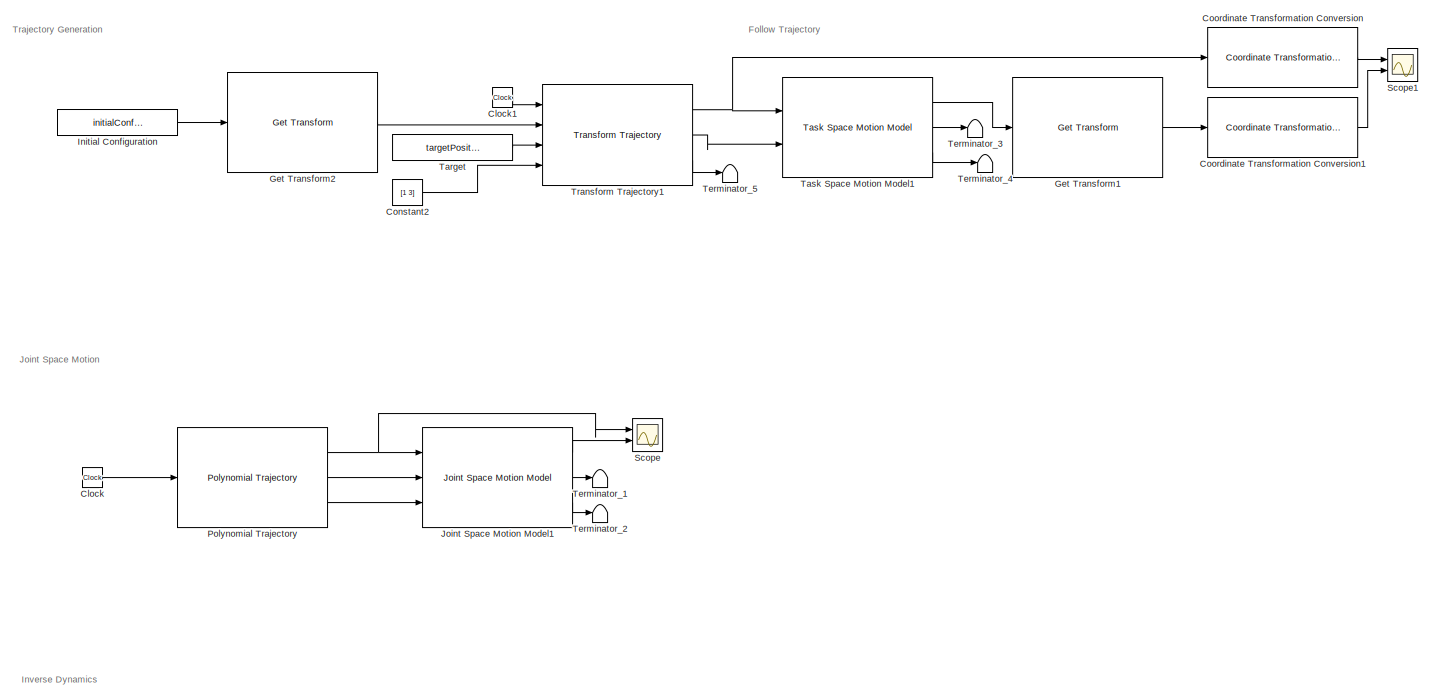
[diagram: root canvas - part 1/3, top left region]
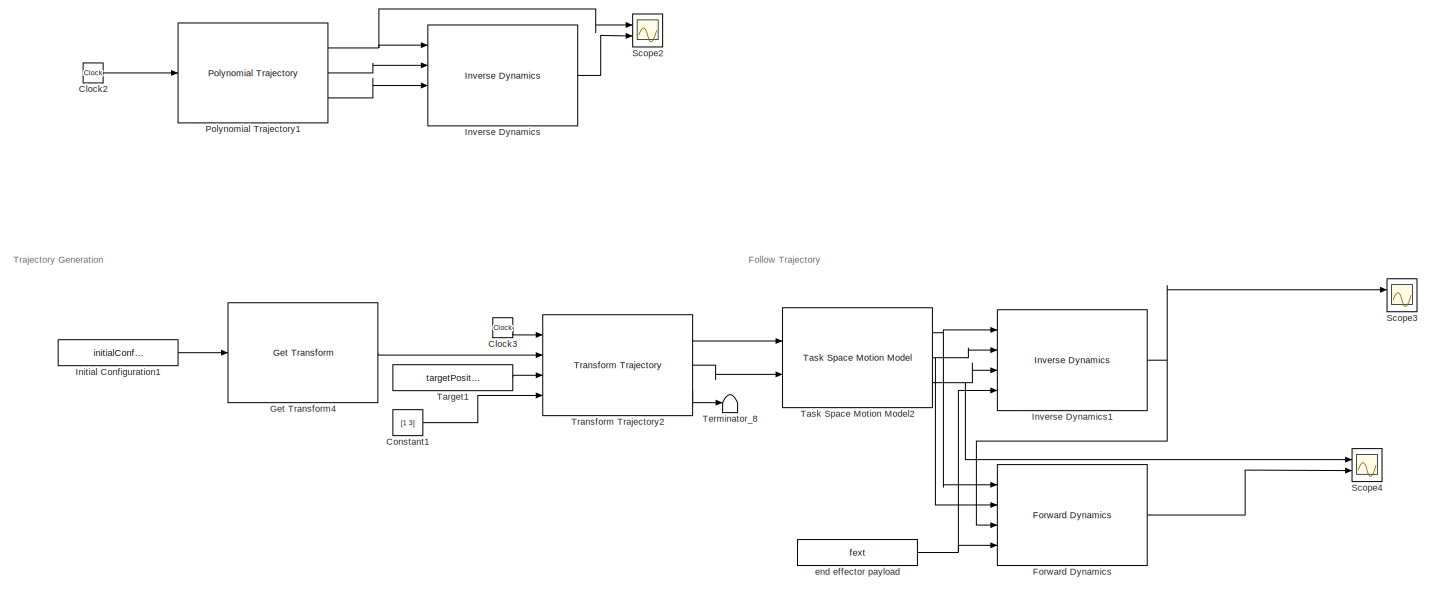
[diagram: root canvas - part 2/3, bottom left region]
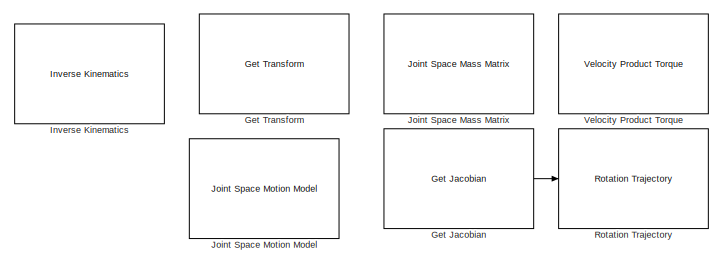
[diagram: root canvas - part 3/3, bottom right region]
MODEL slx_4680a975683b
KIND model
CONFIG AbsTol = auto
CONFIG EnableMultiTasking = off
CONFIG FixedStep = auto
CONFIG MaxStep = auto
CONFIG MinStep = auto
CONFIG RelTol = 1e-3
CONFIG SampleTimeConstraint = Unconstrained
CONFIG SolverName = VariableStepAuto
CONFIG StartTime = 0.0
CONFIG StopTime = 0.5
BLOCK [Clock] Clock
  Commented = on
BLOCK [Clock] Clock1
  Commented = on
  Decimation = 1
BLOCK [Clock] Clock2
  Commented = on
BLOCK [Clock] Clock3
  Decimation = 1
  DisplayTime = on
BLOCK [Constant] Constant1
  Value = [1 3]
BLOCK [Constant] Constant2
  Commented = on
  Value = [1 3]
BLOCK [Reference] Coordinate Transformation Conversion  REF=robotcorelib/Coordinate Transformation Conversion
  Commented = on
  Ports = [1, 1]
  SourceBlock = robotcorelib/Coordinate Transformation Conversion
  SourceProductBaseCode = NV,RO,RR,UV
  SourceType = robotics.slcore.internal.block.CoordinateTransformationConversion
BLOCK [Reference] Coordinate Transformation Conversion1  REF=robotcorelib/Coordinate Transformation Conversion
  Commented = on
  Ports = [1, 1]
  SourceBlock = robotcorelib/Coordinate Transformation Conversion
  SourceProductBaseCode = NV,RO,RR,UV
  SourceType = robotics.slcore.internal.block.CoordinateTransformationConversion
BLOCK [Reference] Forward Dynamics  REF=robotmaniplib/Forward Dynamics
  Ports = [4, 1]
  SourceBlock = robotmaniplib/Forward Dynamics
  SourceProductBaseCode = RO
  SourceType = Forward Dynamics
BLOCK [Reference] Get Jacobian  REF=robotmaniplib/Get Jacobian
  Commented = on
  Ports = [1, 1]
  SourceBlock = robotmaniplib/Get Jacobian
  SourceProductBaseCode = RO
  SourceType = Get Jacobian
BLOCK [Reference] Get Transform  REF=robotmaniplib/Get Transform
  Commented = on
  Ports = [1, 1]
  SourceBlock = robotmaniplib/Get Transform
  SourceProductBaseCode = RO
  SourceType = Get Transform
BLOCK [Reference] Get Transform1  REF=robotmaniplib/Get Transform
  Commented = on
  Ports = [1, 1]
  SourceBlock = robotmaniplib/Get Transform
  SourceProductBaseCode = RO
  SourceType = Get Transform
BLOCK [Reference] Get Transform2  REF=robotmaniplib/Get Transform
  Commented = on
  Ports = [1, 1]
  SourceBlock = robotmaniplib/Get Transform
  SourceProductBaseCode = RO
  SourceType = Get Transform
BLOCK [Reference] Get Transform4  REF=robotmaniplib/Get Transform
  Ports = [1, 1]
  SourceBlock = robotmaniplib/Get Transform
  SourceProductBaseCode = RO
  SourceType = Get Transform
BLOCK [Constant] Initial Configuration
  Commented = on
  OutDataTypeStr = double
  Value = initialConfig
  VectorParams1D = off
BLOCK [Constant] Initial Configuration1
  OutDataTypeStr = double
  Value = initialConfig
  VectorParams1D = off
BLOCK [Reference] Inverse Dynamics  REF=robotmaniplib/Inverse Dynamics
  Commented = on
  Ports = [4, 1]
  SourceBlock = robotmaniplib/Inverse Dynamics
  SourceProductBaseCode = RO
  SourceType = Inverse Dynamics
BLOCK [Reference] Inverse Dynamics1  REF=robotmaniplib/Inverse Dynamics
  Ports = [4, 1]
  SourceBlock = robotmaniplib/Inverse Dynamics
  SourceProductBaseCode = RO
  SourceType = Inverse Dynamics
BLOCK [Reference] Inverse Kinematics  REF=robotmaniplib/Inverse Kinematics
  Commented = on
  Ports = [3, 2]
  SourceBlock = robotmaniplib/Inverse Kinematics
  SourceProductBaseCode = RO
  SourceType = Inverse Kinematics
BLOCK [Reference] Joint Space Mass Matrix  REF=robotmaniplib/Joint Space Mass Matrix
  Commented = on
  Ports = [1, 1]
  SourceBlock = robotmaniplib/Joint Space Mass Matrix
  SourceProductBaseCode = RO
  SourceType = Joint Space Mass Matrix
BLOCK [Reference] Joint Space Motion Model  REF=robotmaniplib/Joint Space Motion Model
  Commented = on
  Ports = [3, 3]
  SourceBlock = robotmaniplib/Joint Space Motion Model
  SourceProductBaseCode = RO
  SourceType = Joint Space Motion Model
BLOCK [Reference] Joint Space Motion Model1  REF=robotmaniplib/Joint Space Motion Model
  Commented = on
  Ports = [3, 3]
  SourceBlock = robotmaniplib/Joint Space Motion Model
  SourceProductBaseCode = RO
  SourceType = Joint Space Motion Model
BLOCK [Reference] Polynomial Trajectory  REF=robotcorelib/Polynomial Trajectory
  Commented = on
  Ports = [1, 3]
  SourceBlock = robotcorelib/Polynomial Trajectory
  SourceProductBaseCode = NV,RO,RR,UV
  SourceType = robotics.slcore.internal.block.PolyTrajSys
BLOCK [Reference] Polynomial Trajectory1  REF=robotcorelib/Polynomial Trajectory
  Commented = on
  Ports = [1, 3]
  SourceBlock = robotcorelib/Polynomial Trajectory
  SourceProductBaseCode = NV,RO,RR,UV
  SourceType = robotics.slcore.internal.block.PolyTrajSys
BLOCK [Reference] Rotation Trajectory  REF=robotcorelib/Rotation Trajectory
  Commented = on
  Ports = [1, 3]
  SourceBlock = robotcorelib/Rotation Trajectory
  SourceProductBaseCode = NV,RO,RR,UV
  SourceType = robotics.slcore.internal.block.RotTrajSys
BLOCK [Scope] Scope
  Commented = on
  Floating = off
  NumInputPorts = 2
  Ports = [2]
  ScopeSpecificationString = Simulink.scopes.TimeScopeBlockCfg('CurrentConfiguration', extmgr.ConfigurationSet(extmgr.Configuration('Core','General UI',true),extmgr.Configuration('Core','Source UI',true),extmgr.Configuration('Sources','WiredSimulink',true),extmgr.Configuration('Visuals','Time Domain',true,'SerializedDisplays',{struct('MinYLimReal','-0.11695','MaxYLimReal','1.05253','YLabelReal','','MinYLimMag','0.00000','MaxY...<+2032ch>
BLOCK [Scope] Scope1
  Commented = on
  Floating = off
  NumInputPorts = 2
  Ports = [2]
  ScopeSpecificationString = Simulink.scopes.TimeScopeBlockCfg('CurrentConfiguration', extmgr.ConfigurationSet(extmgr.Configuration('Core','General UI',true),extmgr.Configuration('Core','Source UI',true),extmgr.Configuration('Sources','WiredSimulink',true,'DataLoggingVariableName','ScopeData1'),extmgr.Configuration('Visuals','Time Domain',true,'SerializedDisplays',{struct('MinYLimReal','-1.00000','MaxYLimReal','1.00000','YLab...<+1707ch>
BLOCK [Scope] Scope2
  Commented = on
  Floating = off
  NumInputPorts = 2
  Ports = [2]
  ScopeSpecificationString = Simulink.scopes.TimeScopeBlockCfg('CurrentConfiguration', extmgr.ConfigurationSet(extmgr.Configuration('Core','General UI',true),extmgr.Configuration('Core','Source UI',true),extmgr.Configuration('Sources','WiredSimulink',true,'DataLoggingVariableName','ScopeData1'),extmgr.Configuration('Visuals','Time Domain',true,'SerializedDisplays',{struct('MinYLimReal','-45.63514','MaxYLimReal','11.39448','YL...<+2024ch>
BLOCK [Scope] Scope3
  Floating = off
  NumInputPorts = 2
  Ports = [2]
  ScopeSpecificationString = Simulink.scopes.TimeScopeBlockCfg('CurrentConfiguration', extmgr.ConfigurationSet(extmgr.Configuration('Core','General UI',true),extmgr.Configuration('Core','Source UI',true),extmgr.Configuration('Sources','WiredSimulink',true,'DataLoggingVariableName','ScopeData2'),extmgr.Configuration('Visuals','Time Domain',true,'SerializedDisplays',{struct('MinYLimReal','-816.87566','MaxYLimReal','1016.6945','...<+2103ch>
BLOCK [Scope] Scope4
  Floating = off
  NumInputPorts = 2
  Ports = [2]
  ScopeSpecificationString = Simulink.scopes.TimeScopeBlockCfg('CurrentConfiguration', extmgr.ConfigurationSet(extmgr.Configuration('Core','General UI',true),extmgr.Configuration('Core','Source UI',true),extmgr.Configuration('Sources','WiredSimulink',true,'DataLoggingVariableName','ScopeData3'),extmgr.Configuration('Visuals','Time Domain',true,'SerializedDisplays',{struct('MinYLimReal','-273.40672','MaxYLimReal','9.10451','YL...<+3037ch>
BLOCK [Constant] Target
  Commented = on
  Value = targetPosition
BLOCK [Constant] Target1
  Value = targetPosition
BLOCK [Reference] Task Space Motion Model1  REF=robotmaniplib/Task Space Motion Model
  Commented = on
  Ports = [2, 3]
  SourceBlock = robotmaniplib/Task Space Motion Model
  SourceProductBaseCode = RO
  SourceType = Task Space Motion Model
BLOCK [Reference] Task Space Motion Model2  REF=robotmaniplib/Task Space Motion Model
  Ports = [2, 3]
  SourceBlock = robotmaniplib/Task Space Motion Model
  SourceProductBaseCode = RO
  SourceType = Task Space Motion Model
BLOCK [Terminator] Terminator_1
  Commented = on
BLOCK [Terminator] Terminator_2
  Commented = on
BLOCK [Terminator] Terminator_3
  Commented = on
BLOCK [Terminator] Terminator_4
  Commented = on
BLOCK [Terminator] Terminator_5
  Commented = on
BLOCK [Terminator] Terminator_8
BLOCK [Reference] Transform Trajectory1  REF=robotcorelib/Transform Trajectory
  Commented = on
  Ports = [4, 3]
  SourceBlock = robotcorelib/Transform Trajectory
  SourceProductBaseCode = NV,RO,RR,UV
  SourceType = robotics.slcore.internal.block.TransformTrajSys
BLOCK [Reference] Transform Trajectory2  REF=robotcorelib/Transform Trajectory
  Ports = [4, 3]
  SourceBlock = robotcorelib/Transform Trajectory
  SourceProductBaseCode = NV,RO,RR,UV
  SourceType = robotics.slcore.internal.block.TransformTrajSys
BLOCK [Reference] Velocity Product Torque  REF=robotmaniplib/Velocity Product Torque
  Commented = on
  Ports = [2, 1]
  SourceBlock = robotmaniplib/Velocity Product Torque
  SourceProductBaseCode = RO
  SourceType = Velocity Product Torque
BLOCK [Constant] end effector payload
  OutDataTypeStr = double
  Value = fext
  VectorParams1D = off
ANNOTATION (root): Follow Trajectory
ANNOTATION (root): Trajectory Generation
ANNOTATION (root): Inverse Dynamics
ANNOTATION (root): Joint Space Motion
LINE Clock1:1 -> Transform Trajectory1:1
LINE Clock2:1 -> Polynomial Trajectory1:1
LINE Clock3:1 -> Transform Trajectory2:1
LINE Clock:1 -> Polynomial Trajectory:1
LINE Constant1:1 -> Transform Trajectory2:4
LINE Constant2:1 -> Transform Trajectory1:4
LINE Coordinate Transformation Conversion1:1 -> Scope1:2
LINE Coordinate Transformation Conversion:1 -> Scope1:1
LINE Forward Dynamics:1 -> Scope4:2
LINE Get Jacobian:1 -> Rotation Trajectory:1
LINE Get Transform1:1 -> Coordinate Transformation Conversion1:1
LINE Get Transform2:1 -> Transform Trajectory1:2
LINE Get Transform4:1 -> Transform Trajectory2:2
LINE Initial Configuration1:1 -> Get Transform4:1
LINE Initial Configuration:1 -> Get Transform2:1
NET Inverse Dynamics1:1 -> Forward Dynamics:3, Scope3:1
LINE Inverse Dynamics:1 -> Scope2:2
LINE Joint Space Motion Model1:1 -> Scope:2
LINE Joint Space Motion Model1:2 -> Terminator_1:1
LINE Joint Space Motion Model1:3 -> Terminator_2:1
NET Polynomial Trajectory1:1 -> Inverse Dynamics:1, Scope2:1
LINE Polynomial Trajectory1:2 -> Inverse Dynamics:2
LINE Polynomial Trajectory1:3 -> Inverse Dynamics:3
NET Polynomial Trajectory:1 -> Joint Space Motion Model1:1, Scope:1
LINE Polynomial Trajectory:2 -> Joint Space Motion Model1:2
LINE Polynomial Trajectory:3 -> Joint Space Motion Model1:3
LINE Target1:1 -> Transform Trajectory2:3
LINE Target:1 -> Transform Trajectory1:3
LINE Task Space Motion Model1:1 -> Get Transform1:1
LINE Task Space Motion Model1:2 -> Terminator_3:1
LINE Task Space Motion Model1:3 -> Terminator_4:1
NET Task Space Motion Model2:1 -> Forward Dynamics:1, Inverse Dynamics1:1
NET Task Space Motion Model2:2 -> Forward Dynamics:2, Inverse Dynamics1:2
NET Task Space Motion Model2:3 -> Inverse Dynamics1:3, Scope4:1
NET Transform Trajectory1:1 -> Coordinate Transformation Conversion:1, Task Space Motion Model1:1
LINE Transform Trajectory1:2 -> Task Space Motion Model1:2
LINE Transform Trajectory1:3 -> Terminator_5:1
LINE Transform Trajectory2:1 -> Task Space Motion Model2:1
LINE Transform Trajectory2:2 -> Task Space Motion Model2:2
LINE Transform Trajectory2:3 -> Terminator_8:1
NET end effector payload:1 -> Forward Dynamics:4, Inverse Dynamics1:4
note: NET lines group one-source signal fan-out (src -> all destinations, sorted); 1:1 wires keep LINE
